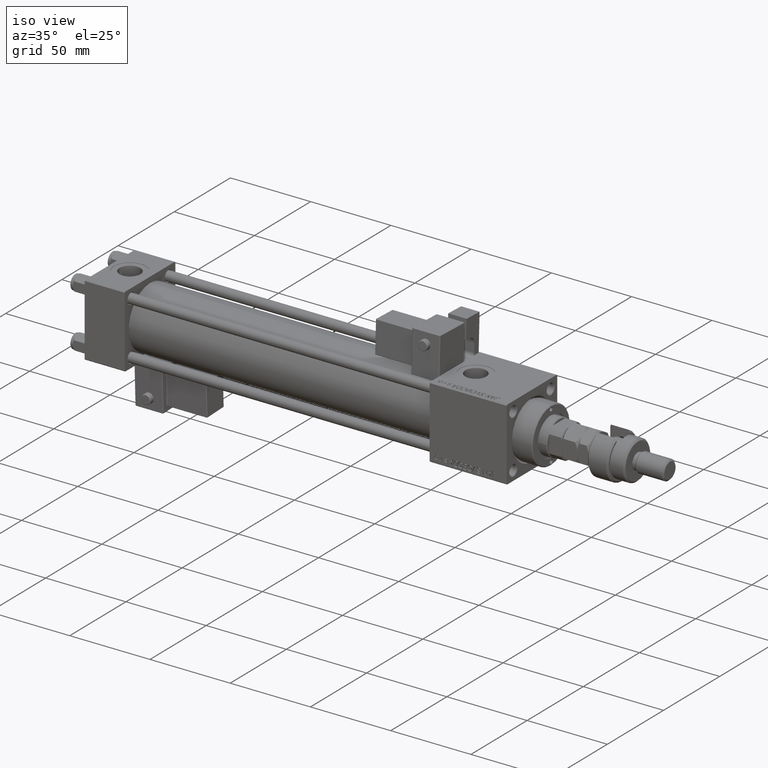
[diagram: clean part render]
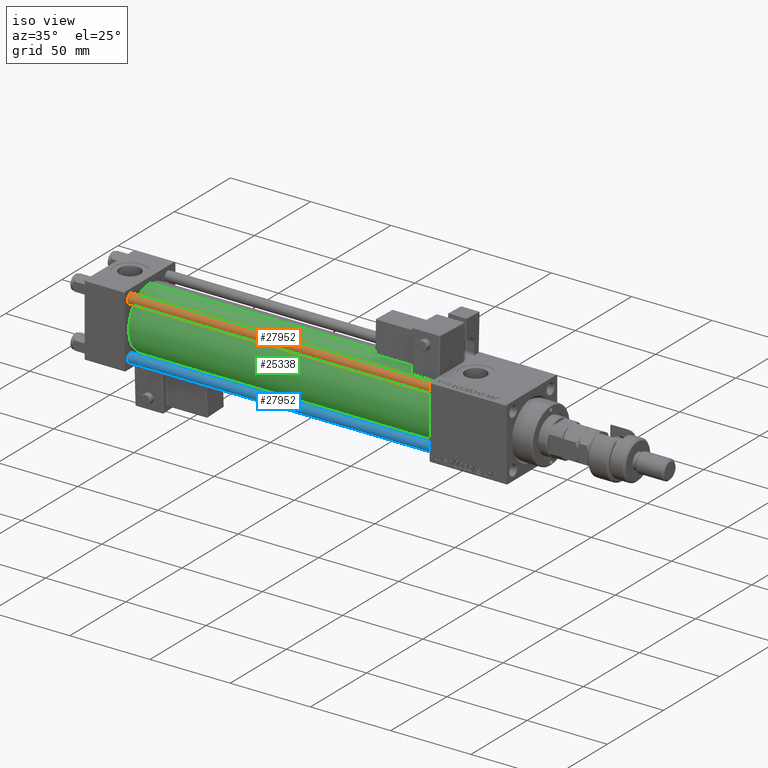
[diagram: same view with three faces highlighted in distinct colors, each labeled with its STEP entity id]
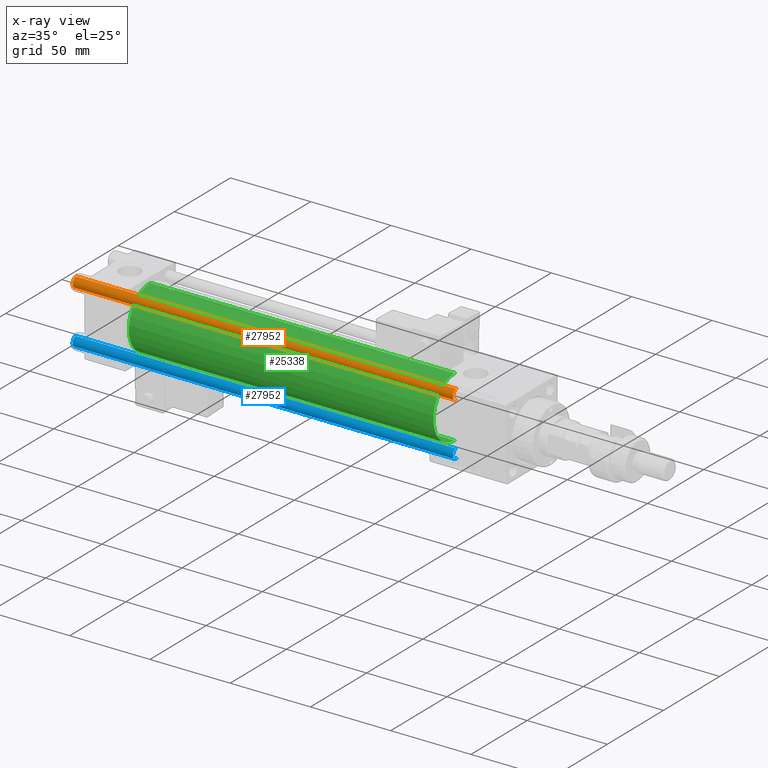
[diagram: x-ray of the same camera — body ghosted, the three highlighted faces saturated]
A machine part, iso view with three faces highlighted in distinct colors.
The next image is the same camera in x-ray (body ghosted, the three faces saturated) — at least one of them is partly hidden behind the body in this view.
Their STEP definitions:

[orange] entity #27952 — the highlighted cylindrical surface (edge-blend (fillet) strip) has radius 3 mm, axis along (1, 0, -0).
#1613 = DIRECTION ( 'NONE',  ( -1.000000000000000000, 0.000000000000000000, 0.000000000000000000 ) ) ;
#3936 = DIRECTION ( 'NONE',  ( 1.000000000000000000, 0.000000000000000000, 0.000000000000000000 ) ) ;
#7392 = DIRECTION ( 'NONE',  ( -0.000000000000000000, -0.000000000000000000, 1.000000000000000000 ) ) ;
#10285 = DIRECTION ( 'NONE',  ( -0.000000000000000000, -0.000000000000000000, -1.000000000000000000 ) ) ;
#12677 = CARTESIAN_POINT ( 'NONE',  ( -3.000000000000000444, 0.000000000000000000, 237.5000000000000284 ) ) ;
#12980 = VECTOR ( 'NONE', #31287, 1000.000000000000000 ) ;
#13898 = EDGE_CURVE ( 'NONE', #23574, #28242, #35261, .T. ) ;
#15525 = CARTESIAN_POINT ( 'NONE',  ( 0.000000000000000000, 0.000000000000000000, 0.5000000000000281997 ) ) ;
#17208 = CARTESIAN_POINT ( 'NONE',  ( -3.000000000000000444, 0.000000000000000000, 0.5000000000000281997 ) ) ;
#17735 = EDGE_CURVE ( 'NONE', #31086, #23574, #54938, .T. ) ;
#21651 = CARTESIAN_POINT ( 'NONE',  ( 3.000000000000000444, 3.673940397442060361E-16, 0.5000000000000281997 ) ) ;
#21656 = EDGE_CURVE ( 'NONE', #28242, #54561, #46395, .T. ) ;
#23446 = LINE ( 'NONE', #27085, #12980 ) ;
#23477 = VECTOR ( 'NONE', #42594, 1000.000000000000000 ) ;
#23574 = VERTEX_POINT ( 'NONE', #50800 ) ;
#27085 = CARTESIAN_POINT ( 'NONE',  ( -3.000000000000000444, 0.000000000000000000, 238.0000000000000000 ) ) ;
#27093 = CYLINDRICAL_SURFACE ( 'NONE', #50116, 3.000000000000000444 ) ;
#27952 = ADVANCED_FACE ( 'NONE', ( #52630 ), #27093, .T. ) ;
#28242 = VERTEX_POINT ( 'NONE', #21651 ) ;
#31086 = VERTEX_POINT ( 'NONE', #12677 ) ;
#31287 = DIRECTION ( 'NONE',  ( -0.000000000000000000, -0.000000000000000000, -1.000000000000000000 ) ) ;
#32682 = EDGE_LOOP ( 'NONE', ( #52741, #48032, #41364, #47764 ) ) ;
#35261 = LINE ( 'NONE', #38382, #23477 ) ;
#38382 = CARTESIAN_POINT ( 'NONE',  ( 3.000000000000000444, 3.673940397442060361E-16, 238.0000000000000000 ) ) ;
#38992 = EDGE_CURVE ( 'NONE', #31086, #54561, #23446, .T. ) ;
#40005 = CARTESIAN_POINT ( 'NONE',  ( 0.000000000000000000, 0.000000000000000000, 238.0000000000000000 ) ) ;
#41364 = ORIENTED_EDGE ( 'NONE', *, *, #21656, .T. ) ;
#41501 = CARTESIAN_POINT ( 'NONE',  ( 0.000000000000000000, 0.000000000000000000, 237.5000000000000284 ) ) ;
#41771 = DIRECTION ( 'NONE',  ( 0.000000000000000000, 0.000000000000000000, -1.000000000000000000 ) ) ;
#42594 = DIRECTION ( 'NONE',  ( -0.000000000000000000, -0.000000000000000000, -1.000000000000000000 ) ) ;
#46395 = CIRCLE ( 'NONE', #47275, 3.000000000000000444 ) ;
#46860 = AXIS2_PLACEMENT_3D ( 'NONE', #41501, #41771, #3936 ) ;
#47275 = AXIS2_PLACEMENT_3D ( 'NONE', #15525, #7392, #53915 ) ;
#47764 = ORIENTED_EDGE ( 'NONE', *, *, #38992, .F. ) ;
#48032 = ORIENTED_EDGE ( 'NONE', *, *, #13898, .T. ) ;
#50116 = AXIS2_PLACEMENT_3D ( 'NONE', #40005, #10285, #1613 ) ;
#50800 = CARTESIAN_POINT ( 'NONE',  ( 3.000000000000000444, 3.673940397442060361E-16, 237.5000000000000284 ) ) ;
#52630 = FACE_OUTER_BOUND ( 'NONE', #32682, .T. ) ;
#52741 = ORIENTED_EDGE ( 'NONE', *, *, #17735, .T. ) ;
#53915 = DIRECTION ( 'NONE',  ( 1.000000000000000000, 0.000000000000000000, 0.000000000000000000 ) ) ;
#54561 = VERTEX_POINT ( 'NONE', #17208 ) ;
#54938 = CIRCLE ( 'NONE', #46860, 3.000000000000000444 ) ;

[blue] entity #27952 — the highlighted cylindrical surface (edge-blend (fillet) strip) has radius 3 mm, axis along (-1, -0, -0).
#1613 = DIRECTION ( 'NONE',  ( -1.000000000000000000, 0.000000000000000000, 0.000000000000000000 ) ) ;
#3936 = DIRECTION ( 'NONE',  ( 1.000000000000000000, 0.000000000000000000, 0.000000000000000000 ) ) ;
#7392 = DIRECTION ( 'NONE',  ( -0.000000000000000000, -0.000000000000000000, 1.000000000000000000 ) ) ;
#10285 = DIRECTION ( 'NONE',  ( -0.000000000000000000, -0.000000000000000000, -1.000000000000000000 ) ) ;
#12677 = CARTESIAN_POINT ( 'NONE',  ( -3.000000000000000444, 0.000000000000000000, 237.5000000000000284 ) ) ;
#12980 = VECTOR ( 'NONE', #31287, 1000.000000000000000 ) ;
#13898 = EDGE_CURVE ( 'NONE', #23574, #28242, #35261, .T. ) ;
#15525 = CARTESIAN_POINT ( 'NONE',  ( 0.000000000000000000, 0.000000000000000000, 0.5000000000000281997 ) ) ;
#17208 = CARTESIAN_POINT ( 'NONE',  ( -3.000000000000000444, 0.000000000000000000, 0.5000000000000281997 ) ) ;
#17735 = EDGE_CURVE ( 'NONE', #31086, #23574, #54938, .T. ) ;
#21651 = CARTESIAN_POINT ( 'NONE',  ( 3.000000000000000444, 3.673940397442060361E-16, 0.5000000000000281997 ) ) ;
#21656 = EDGE_CURVE ( 'NONE', #28242, #54561, #46395, .T. ) ;
#23446 = LINE ( 'NONE', #27085, #12980 ) ;
#23477 = VECTOR ( 'NONE', #42594, 1000.000000000000000 ) ;
#23574 = VERTEX_POINT ( 'NONE', #50800 ) ;
#27085 = CARTESIAN_POINT ( 'NONE',  ( -3.000000000000000444, 0.000000000000000000, 238.0000000000000000 ) ) ;
#27093 = CYLINDRICAL_SURFACE ( 'NONE', #50116, 3.000000000000000444 ) ;
#27952 = ADVANCED_FACE ( 'NONE', ( #52630 ), #27093, .T. ) ;
#28242 = VERTEX_POINT ( 'NONE', #21651 ) ;
#31086 = VERTEX_POINT ( 'NONE', #12677 ) ;
#31287 = DIRECTION ( 'NONE',  ( -0.000000000000000000, -0.000000000000000000, -1.000000000000000000 ) ) ;
#32682 = EDGE_LOOP ( 'NONE', ( #52741, #48032, #41364, #47764 ) ) ;
#35261 = LINE ( 'NONE', #38382, #23477 ) ;
#38382 = CARTESIAN_POINT ( 'NONE',  ( 3.000000000000000444, 3.673940397442060361E-16, 238.0000000000000000 ) ) ;
#38992 = EDGE_CURVE ( 'NONE', #31086, #54561, #23446, .T. ) ;
#40005 = CARTESIAN_POINT ( 'NONE',  ( 0.000000000000000000, 0.000000000000000000, 238.0000000000000000 ) ) ;
#41364 = ORIENTED_EDGE ( 'NONE', *, *, #21656, .T. ) ;
#41501 = CARTESIAN_POINT ( 'NONE',  ( 0.000000000000000000, 0.000000000000000000, 237.5000000000000284 ) ) ;
#41771 = DIRECTION ( 'NONE',  ( 0.000000000000000000, 0.000000000000000000, -1.000000000000000000 ) ) ;
#42594 = DIRECTION ( 'NONE',  ( -0.000000000000000000, -0.000000000000000000, -1.000000000000000000 ) ) ;
#46395 = CIRCLE ( 'NONE', #47275, 3.000000000000000444 ) ;
#46860 = AXIS2_PLACEMENT_3D ( 'NONE', #41501, #41771, #3936 ) ;
#47275 = AXIS2_PLACEMENT_3D ( 'NONE', #15525, #7392, #53915 ) ;
#47764 = ORIENTED_EDGE ( 'NONE', *, *, #38992, .F. ) ;
#48032 = ORIENTED_EDGE ( 'NONE', *, *, #13898, .T. ) ;
#50116 = AXIS2_PLACEMENT_3D ( 'NONE', #40005, #10285, #1613 ) ;
#50800 = CARTESIAN_POINT ( 'NONE',  ( 3.000000000000000444, 3.673940397442060361E-16, 237.5000000000000284 ) ) ;
#52630 = FACE_OUTER_BOUND ( 'NONE', #32682, .T. ) ;
#52741 = ORIENTED_EDGE ( 'NONE', *, *, #17735, .T. ) ;
#53915 = DIRECTION ( 'NONE',  ( 1.000000000000000000, 0.000000000000000000, 0.000000000000000000 ) ) ;
#54561 = VERTEX_POINT ( 'NONE', #17208 ) ;
#54938 = CIRCLE ( 'NONE', #46860, 3.000000000000000444 ) ;

[green] entity #25338 — the highlighted cylindrical surface (partial cylindrical patch) has radius 19 mm, axis along (-1, -0, -0).
#54 = EDGE_CURVE ( 'NONE', #33568, #1809, #29223, .T. ) ;
#1809 = VERTEX_POINT ( 'NONE', #15070 ) ;
#3144 = DIRECTION ( 'NONE',  ( 1.000000000000000000, 0.000000000000000000, 0.000000000000000000 ) ) ;
#3581 = AXIS2_PLACEMENT_3D ( 'NONE', #19679, #3144, #53592 ) ;
#5694 = EDGE_CURVE ( 'NONE', #33568, #47233, #41141, .T. ) ;
#7212 = LINE ( 'NONE', #10857, #45379 ) ;
#8907 = FACE_OUTER_BOUND ( 'NONE', #30179, .T. ) ;
#9770 = CIRCLE ( 'NONE', #25847, 19.00000000000000000 ) ;
#10857 = CARTESIAN_POINT ( 'NONE',  ( 215.0000000000000000, -2.752562955852396712E-16, -19.00000000000000000 ) ) ;
#15070 = CARTESIAN_POINT ( 'NONE',  ( 24.99999999999999289, -2.602085213965210642E-15, 19.00000000000000000 ) ) ;
#18572 = ORIENTED_EDGE ( 'NONE', *, *, #54, .T. ) ;
#19679 = CARTESIAN_POINT ( 'NONE',  ( 215.0000000000000000, -2.602085213965210642E-15, 0.000000000000000000 ) ) ;
#20844 = DIRECTION ( 'NONE',  ( -1.000000000000000000, -0.000000000000000000, -0.000000000000000000 ) ) ;
#21390 = CARTESIAN_POINT ( 'NONE',  ( 215.0000000000000000, -2.602085213965210642E-15, 19.00000000000000000 ) ) ;
#22328 = CARTESIAN_POINT ( 'NONE',  ( 215.0000000000000000, -2.602085213965210642E-15, 0.000000000000000000 ) ) ;
#22975 = CARTESIAN_POINT ( 'NONE',  ( 215.0000000000000000, -2.752562955852396712E-16, -19.00000000000000000 ) ) ;
#23125 = EDGE_CURVE ( 'NONE', #1809, #33216, #9770, .T. ) ;
#23648 = ORIENTED_EDGE ( 'NONE', *, *, #5694, .F. ) ;
#25338 = ADVANCED_FACE ( 'NONE', ( #8907 ), #30460, .T. ) ;
#25847 = AXIS2_PLACEMENT_3D ( 'NONE', #34375, #31252, #34917 ) ;
#26254 = DIRECTION ( 'NONE',  ( -1.000000000000000000, -0.000000000000000000, -0.000000000000000000 ) ) ;
#29223 = LINE ( 'NONE', #21390, #40900 ) ;
#30179 = EDGE_LOOP ( 'NONE', ( #30521, #23648, #18572, #42573 ) ) ;
#30460 = CYLINDRICAL_SURFACE ( 'NONE', #31319, 19.00000000000000000 ) ;
#30521 = ORIENTED_EDGE ( 'NONE', *, *, #47703, .F. ) ;
#30917 = CARTESIAN_POINT ( 'NONE',  ( 24.99999999999999289, -2.752562955852396712E-16, -19.00000000000000000 ) ) ;
#31252 = DIRECTION ( 'NONE',  ( 1.000000000000000000, -0.000000000000000000, 0.000000000000000000 ) ) ;
#31319 = AXIS2_PLACEMENT_3D ( 'NONE', #22328, #26254, #42549 ) ;
#32698 = DIRECTION ( 'NONE',  ( -1.000000000000000000, -0.000000000000000000, -0.000000000000000000 ) ) ;
#33216 = VERTEX_POINT ( 'NONE', #30917 ) ;
#33568 = VERTEX_POINT ( 'NONE', #39284 ) ;
#34375 = CARTESIAN_POINT ( 'NONE',  ( 24.99999999999999289, -2.602085213965210642E-15, 0.000000000000000000 ) ) ;
#34917 = DIRECTION ( 'NONE',  ( 0.000000000000000000, 0.000000000000000000, 1.000000000000000000 ) ) ;
#39284 = CARTESIAN_POINT ( 'NONE',  ( 215.0000000000000000, -2.602085213965210642E-15, 19.00000000000000000 ) ) ;
#40900 = VECTOR ( 'NONE', #20844, 1000.000000000000000 ) ;
#41141 = CIRCLE ( 'NONE', #3581, 19.00000000000000000 ) ;
#42549 = DIRECTION ( 'NONE',  ( 0.000000000000000000, 0.000000000000000000, 1.000000000000000000 ) ) ;
#42573 = ORIENTED_EDGE ( 'NONE', *, *, #23125, .T. ) ;
#45379 = VECTOR ( 'NONE', #32698, 1000.000000000000000 ) ;
#47233 = VERTEX_POINT ( 'NONE', #22975 ) ;
#47703 = EDGE_CURVE ( 'NONE', #47233, #33216, #7212, .T. ) ;
#53592 = DIRECTION ( 'NONE',  ( 0.000000000000000000, 0.000000000000000000, -1.000000000000000000 ) ) ;